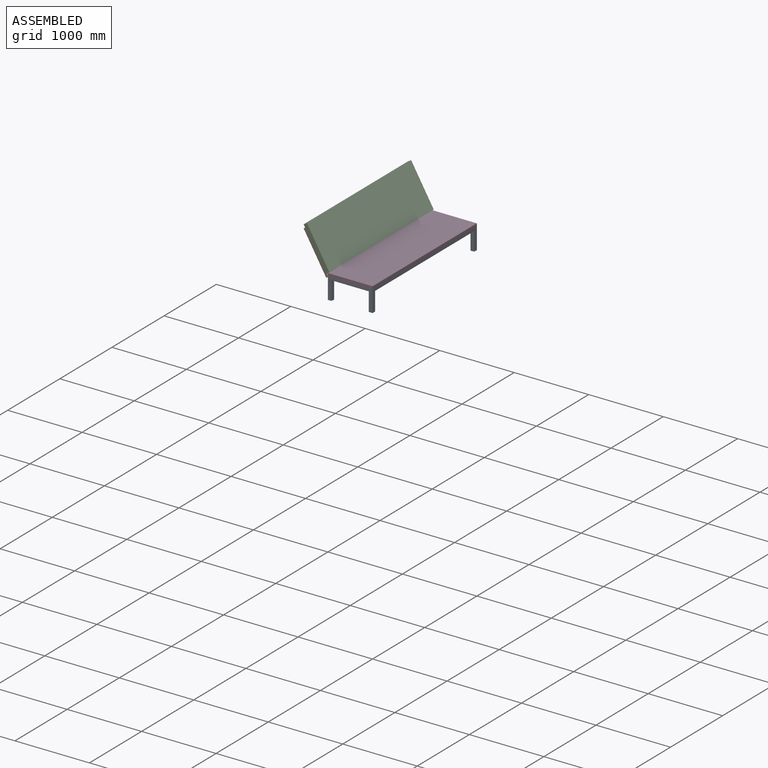
[diagram: assembled view]
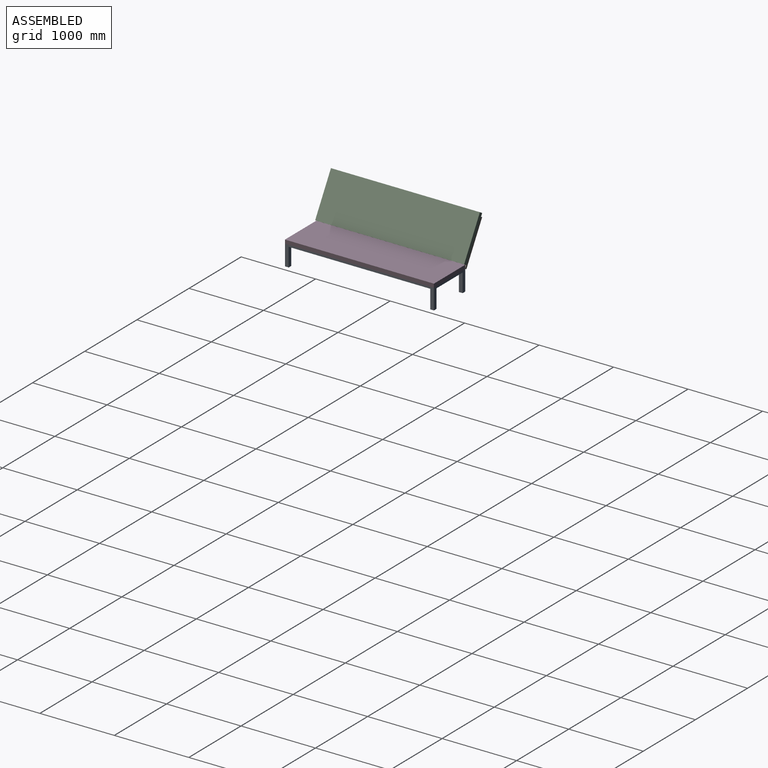
[diagram: assembled view, second angle]
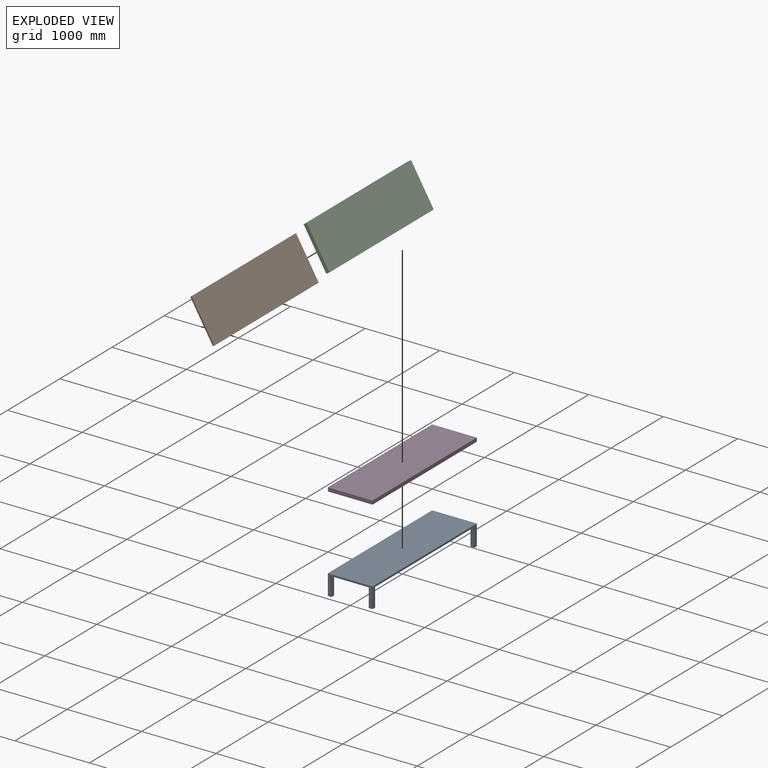
[diagram: exploded view]
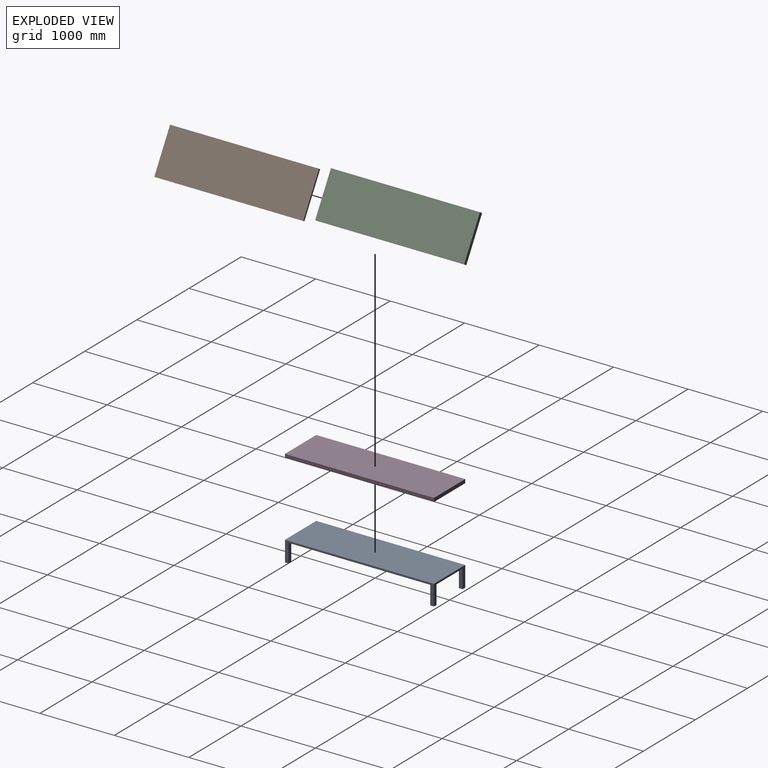
[diagram: exploded view, second angle]
ASSEMBLY  parts=4 mates=2
PART A: 18 faces, bbox 600x2000x275 mm
  f0: plane 2000x275mm, normal (-1,0,0), area 75000mm2, adj f1,f3,f4,f5,f13,f14,f16,f17
  f1: plane 600x275mm, normal (0,-1,0), area 40000mm2, adj f0,f2,f4,f5,f7,f8,f15,f17
  f2: plane 2000x275mm, normal (1,0,0), area 75000mm2, adj f1,f3,f4,f5,f6,f8,f9,f11
  f3: plane 600x275mm, normal (0,1,0), area 40000mm2, adj f0,f2,f4,f5,f10,f11,f12,f14
  f4: plane 2000x600mm, normal (0,0,-1), area 1190000mm2, adj f0,f1,f2,f3,f6,f7,f9,f10
  f5: plane 2000x600mm, normal (0,0,1), area 1200000mm2, adj f0,f1,f2,f3
  f6: plane 250x50mm, normal (0,1,0), area 12500mm2, adj f2,f4,f7,f8
  f7: plane 250x50mm, normal (-1,0,0), area 12500mm2, adj f1,f4,f6,f8
  f8: plane 50x50mm, normal (0,0,-1), area 2500mm2, adj f1,f2,f6,f7
  f9: plane 250x50mm, normal (0,-1,0), area 12500mm2, adj f2,f4,f10,f11
  f10: plane 250x50mm, normal (-1,0,0), area 12500mm2, adj f3,f4,f9,f11
  f11: plane 50x50mm, normal (0,0,-1), area 2500mm2, adj f2,f3,f9,f10
  f12: plane 250x50mm, normal (1,0,0), area 12500mm2, adj f3,f4,f13,f14
  f13: plane 250x50mm, normal (0,-1,0), area 12500mm2, adj f0,f4,f12,f14
  f14: plane 50x50mm, normal (0,0,-1), area 2500mm2, adj f0,f3,f12,f13
  f15: plane 250x50mm, normal (1,0,0), area 12500mm2, adj f1,f4,f16,f17
  f16: plane 250x50mm, normal (0,1,0), area 12500mm2, adj f0,f4,f15,f17
  f17: plane 50x50mm, normal (0,0,-1), area 2500mm2, adj f0,f1,f15,f16
PART B: 6 faces, bbox 600x2000x25 mm
  f0: plane 2000x25mm, normal (1,0,0), area 50000mm2, adj f1,f3,f4,f5
  f1: plane 600x25mm, normal (0,-1,0), area 15000mm2, adj f0,f2,f4,f5
  f2: plane 2000x25mm, normal (-1,0,0), area 50000mm2, adj f1,f3,f4,f5
  f3: plane 600x25mm, normal (0,1,0), area 15000mm2, adj f0,f2,f4,f5
  f4: plane 2000x600mm, normal (0,0,-1), area 1200000mm2, adj f0,f1,f2,f3
  f5: plane 2000x600mm, normal (0,0,1), area 1200000mm2, adj f0,f1,f2,f3
PART C: 6 faces, bbox 600x2000x50 mm
  f0: plane 2000x50mm, normal (1,0,0), area 100000mm2, adj f1,f3,f4,f5
  f1: plane 600x50mm, normal (0,1,0), area 30000mm2, adj f0,f2,f4,f5
  f2: plane 2000x50mm, normal (-1,0,0), area 100000mm2, adj f1,f3,f4,f5
  f3: plane 600x50mm, normal (0,-1,0), area 30000mm2, adj f0,f2,f4,f5
  f4: plane 2000x600mm, normal (0,0,1), area 1200000mm2, adj f0,f1,f2,f3
  f5: plane 2000x600mm, normal (0,0,-1), area 1200000mm2, adj f0,f1,f2,f3
PART D: same geometry as C
PLACE A at identity fixed
PLACE B rot(axis=(0,1,0),59.7deg) t=(-956.28,0,1122.18)mm
PLACE C rot(axis=(0,1,0),59.7deg) t=(-978.07,0,1159.44)mm
PLACE D t=(-1000,0,0)mm
MATE revolute A.f1 <-> B.f1  axis (0,1,0) through (-300,-1000,0)mm
MATE fastened A.f5 <-> D.f5  axis (0,0,1) through (300,-1000,0)mm
